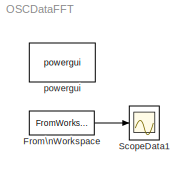
MODEL OSCDataFFT
KIND model
CONFIG InitFcn = OSCData = csvread('scope_184.csv', 2, 0)\nOSCData(:,1)=OSCData(:,1)-OSCData(1,1)\nN=size(OSCData);\nTosc=OSCData(N(1,1),1)
BLOCK [FromWorkspace] From\nWorkspace
  SID = 3
  SampleTime = 0
  VariableName = OSCData
  ZeroCross = on
BLOCK [Scope] ScopeData1
  DataFormat = StructureWithTime
  Floating = off
  LimitDataPoints = off
  NumInputPorts = 1
  Ports = [1]
  SID = 9
  SaveToWorkspace = on
  ShowLegends = off
  ZoomMode = xonly
BLOCK [Reference] powergui  REF=powerlib/powergui
  DisableRonSwitches = off
  DisableSnubberDevices = off
  DisableVfSwitches = off
  DisplayEquations = off
  DisplayStyle = 2
  EnableUseOfTLC = off
  ErrMax = 1e-4
  Frange = [0:2:500]
  FreqAxis = off
  FunctionMessages = off
  HookPort = off
  Interpol = off
  Iterations = 50
  MaxFrequency = 2000
  Pbase = 100e6
  Ports = []
  Priority = 1
  ResistiveCurrentMeasurement = off
  RestoreLinks = warning
  RmsSteady = 1
  SID = 4
  SPID = off
  SampleTime = 50e-6
  ShowGrid = off
  SolverType = Tustin
  SourceBlock = powerlib/powergui
  SourceType = PSB option menu block
  StartTime = 0
  SwTol = 0
  Ts = 100
  UnitsV = kV
  UnitsW = MW
  UserData = DataTag0
  UserDataPersistent = on
  Xlog = on
  Ylog = off
  ZoomFFT = off
  cycles = 2
  display = off
  echomessages = off
  frequency = 60
  frequencyindice = 60
  frequencyindicesteady = 1
  fundamental = 20.06
  methode = off
  save = off
  structure = ScopeData
  variable = ZData
  x0status = blocks
LINE From\nWorkspace:1 -> ScopeData1:1
